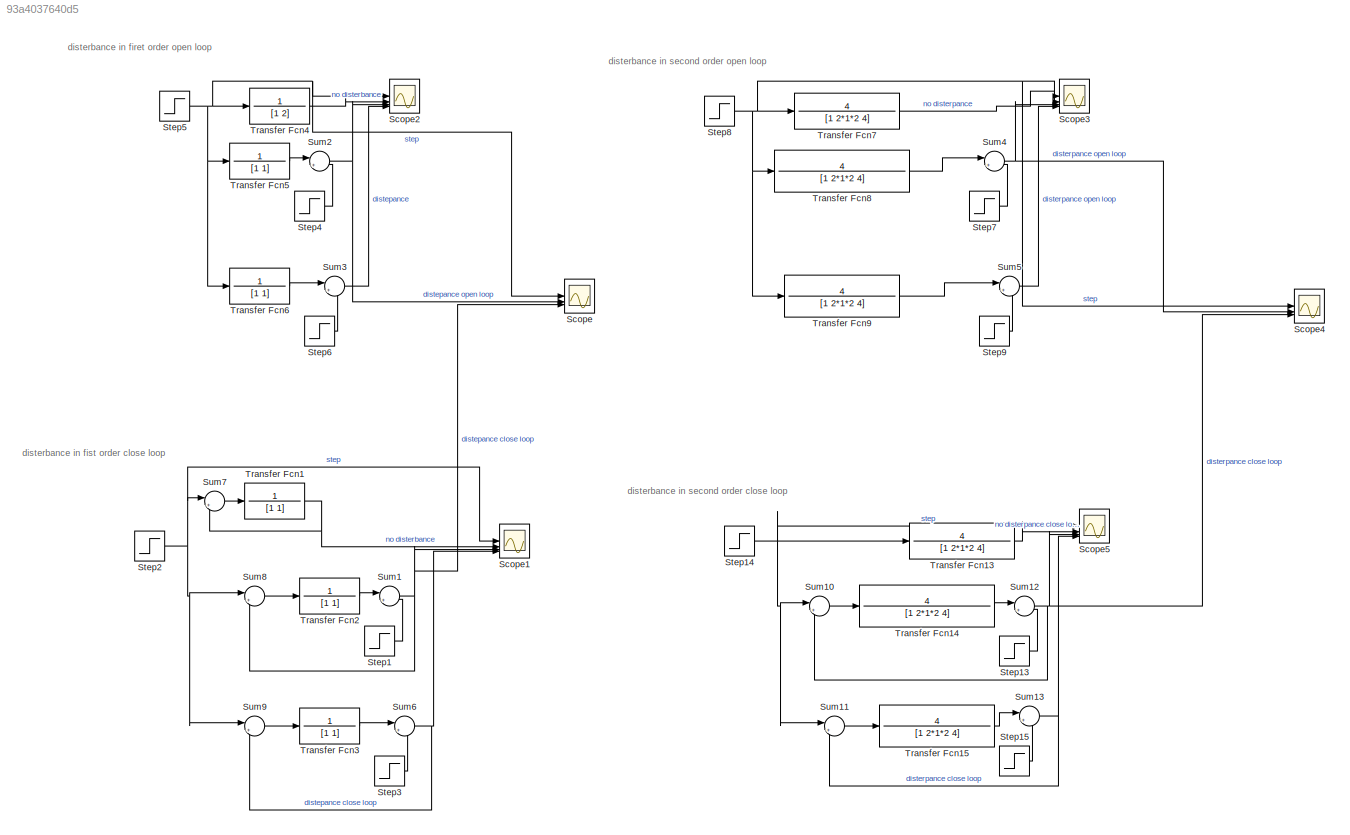
MODEL slx_93a4037640d5
KIND model
CONFIG AbsTol = auto
CONFIG EnableMultiTasking = off
CONFIG FixedStep = auto
CONFIG MaxStep = auto
CONFIG MinStep = auto
CONFIG RelTol = 1e-3
CONFIG SampleTimeConstraint = Unconstrained
CONFIG SolverName = VariableStepAuto
CONFIG StartTime = 0.0
CONFIG StopTime = 20
BLOCK [Scope] Scope
  Floating = off
  NumInputPorts = 3
  ScopeSpecificationString = Simulink.scopes.TimeScopeBlockCfg('CurrentConfiguration', extmgr.ConfigurationSet(extmgr.Configuration('Core','General UI',true),extmgr.Configuration('Core','Source UI',true),extmgr.Configuration('Sources','WiredSimulink',true,'DataLoggingVariableName','ScopeData1'),extmgr.Configuration('Visuals','Time Domain',true,'SerializedDisplays',{struct('MinYLimReal','-0.35019','MaxYLimReal','1.15002','YLab...<+1443ch>
BLOCK [Scope] Scope1
  Floating = off
  NumInputPorts = 4
  ScopeSpecificationString = Simulink.scopes.TimeScopeBlockCfg('CurrentConfiguration', extmgr.ConfigurationSet(extmgr.Configuration('Core','General UI',true),extmgr.Configuration('Core','Source UI',true),extmgr.Configuration('Sources','WiredSimulink',true,'DataLoggingSaveFormat','Array','DataLoggingLimitDataPoints',true,'DataLoggingDecimation','1','DataLoggingVariableName','ScopeData2'),extmgr.Configuration('Visuals','Time Do...<+3754ch>
BLOCK [Scope] Scope2
  Floating = off
  NumInputPorts = 4
  ScopeSpecificationString = Simulink.scopes.TimeScopeBlockCfg('CurrentConfiguration', extmgr.ConfigurationSet(extmgr.Configuration('Core','General UI',true),extmgr.Configuration('Core','Source UI',true),extmgr.Configuration('Sources','WiredSimulink',true,'DataLoggingSaveFormat','Array','DataLoggingLimitDataPoints',true,'DataLoggingDecimation','1'),extmgr.Configuration('Visuals','Time Domain',true,'SerializedDisplays',{struct...<+1548ch>
BLOCK [Scope] Scope3
  Floating = off
  NumInputPorts = 4
  ScopeSpecificationString = Simulink.scopes.TimeScopeBlockCfg('CurrentConfiguration', extmgr.ConfigurationSet(extmgr.Configuration('Core','General UI',true),extmgr.Configuration('Core','Source UI',true),extmgr.Configuration('Sources','WiredSimulink',true,'DataLoggingSaveFormat','Array','DataLoggingLimitDataPoints',true,'DataLoggingDecimation','1','DataLoggingVariableName','ScopeData1'),extmgr.Configuration('Visuals','Time Do...<+2358ch>
BLOCK [Scope] Scope4
  Floating = off
  NumInputPorts = 3
  ScopeSpecificationString = Simulink.scopes.TimeScopeBlockCfg('CurrentConfiguration', extmgr.ConfigurationSet(extmgr.Configuration('Core','General UI',true),extmgr.Configuration('Core','Source UI',true),extmgr.Configuration('Sources','WiredSimulink',true,'DataLoggingVariableName','ScopeData2'),extmgr.Configuration('Visuals','Time Domain',true,'SerializedDisplays',{struct('MinYLimReal','-0.35','MaxYLimReal','1.15','YLabelReal...<+1429ch>
BLOCK [Scope] Scope5
  Floating = off
  NumInputPorts = 4
  ScopeSpecificationString = Simulink.scopes.TimeScopeBlockCfg('CurrentConfiguration', extmgr.ConfigurationSet(extmgr.Configuration('Core','General UI',true),extmgr.Configuration('Core','Source UI',true),extmgr.Configuration('Sources','WiredSimulink',true,'DataLoggingSaveFormat','Array','DataLoggingLimitDataPoints',true,'DataLoggingDecimation','1','DataLoggingVariableName','ScopeData4'),extmgr.Configuration('Visuals','Time Do...<+3693ch>
BLOCK [Step] Step1
  After = 0.7
  SampleTime = 0
  Time = 5
BLOCK [Step] Step13
  After = 0.7
  SampleTime = 0
  Time = 10
BLOCK [Step] Step14
  SampleTime = 0
BLOCK [Step] Step15
  After = 0.7
  SampleTime = 0
  Time = 10
BLOCK [Step] Step2
  SampleTime = 0
BLOCK [Step] Step3
  After = 0.7
  SampleTime = 0
  Time = 5
BLOCK [Step] Step4
  After = 0.7
  SampleTime = 0
  Time = 5
BLOCK [Step] Step5
  SampleTime = 0
BLOCK [Step] Step6
  After = 0.7
  SampleTime = 0
  Time = 5
BLOCK [Step] Step7
  After = 0.7
  SampleTime = 0
  Time = 10
BLOCK [Step] Step8
  SampleTime = 0
BLOCK [Step] Step9
  After = 0.7
  SampleTime = 0
  Time = 10
BLOCK [Sum] Sum1
  Inputs = |+-
BLOCK [Sum] Sum10
  Inputs = |+-
BLOCK [Sum] Sum11
  Inputs = |+-
BLOCK [Sum] Sum12
  Inputs = |+-
BLOCK [Sum] Sum13
  Inputs = |++
BLOCK [Sum] Sum2
  Inputs = |+-
BLOCK [Sum] Sum3
  Inputs = |++
BLOCK [Sum] Sum4
  Inputs = |+-
BLOCK [Sum] Sum5
  Inputs = |++
BLOCK [Sum] Sum6
  Inputs = |++
BLOCK [Sum] Sum7
  Inputs = |+-
BLOCK [Sum] Sum8
  Inputs = |+-
BLOCK [Sum] Sum9
  Inputs = |+-
BLOCK [TransferFcn] Transfer Fcn1
  Denominator = [1 1]
  Numerator = 1
BLOCK [TransferFcn] Transfer Fcn13
  Denominator = [1 2*1*2 4]
  Numerator = 4
BLOCK [TransferFcn] Transfer Fcn14
  Denominator = [1 2*1*2 4]
  Numerator = 4
BLOCK [TransferFcn] Transfer Fcn15
  Denominator = [1 2*1*2 4]
  Numerator = 4
BLOCK [TransferFcn] Transfer Fcn2
  Denominator = [1 1]
  Numerator = 1
BLOCK [TransferFcn] Transfer Fcn3
  Denominator = [1 1]
  Numerator = 1
BLOCK [TransferFcn] Transfer Fcn4
  Denominator = [1 2]
  Numerator = 1
BLOCK [TransferFcn] Transfer Fcn5
  Denominator = [1 1]
  Numerator = 1
BLOCK [TransferFcn] Transfer Fcn6
  Denominator = [1 1]
  Numerator = 1
BLOCK [TransferFcn] Transfer Fcn7
  Denominator = [1 2*1*2 4]
  Numerator = 4
BLOCK [TransferFcn] Transfer Fcn8
  Denominator = [1 2*1*2 4]
  Numerator = 4
BLOCK [TransferFcn] Transfer Fcn9
  Denominator = [1 2*1*2 4]
  Numerator = 4
ANNOTATION (root): disterbance in firet order open loop
ANNOTATION (root): disterbance in fist order close loop
ANNOTATION (root): disterbance in second order close loop
ANNOTATION (root): disterbance in second order open loop
LINE Step13:1 -> Sum12:2
NET Step14:1 -> Scope5:1, Sum10:1, Sum11:1, Transfer Fcn13:1
LINE Step15:1 -> Sum13:2
LINE Step1:1 -> Sum1:2
NET Step2:1 -> Scope1:1, Sum7:1, Sum8:1, Sum9:1
LINE Step3:1 -> Sum6:2
LINE Step4:1 -> Sum2:2
NET Step5:1 -> Scope2:1, Scope:1, Transfer Fcn4:1, Transfer Fcn5:1, Transfer Fcn6:1
LINE Step6:1 -> Sum3:2
LINE Step7:1 -> Sum4:2
NET Step8:1 -> Scope3:1, Scope4:1, Transfer Fcn7:1, Transfer Fcn8:1, Transfer Fcn9:1
LINE Step9:1 -> Sum5:2
LINE Sum10:1 -> Transfer Fcn14:1
LINE Sum11:1 -> Transfer Fcn15:1
NET Sum12:1 -> Scope4:3, Scope5:3, Sum10:2
NET Sum13:1 -> Scope5:4, Sum11:2
NET Sum1:1 -> Scope1:3, Scope:3, Sum8:2
NET Sum2:1 -> Scope2:3, Scope:2
LINE Sum3:1 -> Scope2:4
NET Sum4:1 -> Scope3:3, Scope4:2
LINE Sum5:1 -> Scope3:4
NET Sum6:1 -> Scope1:4, Sum9:2
LINE Sum7:1 -> Transfer Fcn1:1
LINE Sum8:1 -> Transfer Fcn2:1
LINE Sum9:1 -> Transfer Fcn3:1
LINE Transfer Fcn13:1 -> Scope5:2
LINE Transfer Fcn14:1 -> Sum12:1
LINE Transfer Fcn15:1 -> Sum13:1
NET Transfer Fcn1:1 -> Scope1:2, Sum7:2
LINE Transfer Fcn2:1 -> Sum1:1
LINE Transfer Fcn3:1 -> Sum6:1
LINE Transfer Fcn4:1 -> Scope2:2
LINE Transfer Fcn5:1 -> Sum2:1
LINE Transfer Fcn6:1 -> Sum3:1
LINE Transfer Fcn7:1 -> Scope3:2
LINE Transfer Fcn8:1 -> Sum4:1
LINE Transfer Fcn9:1 -> Sum5:1
note: NET lines group one-source signal fan-out (src -> all destinations, sorted); 1:1 wires keep LINE
